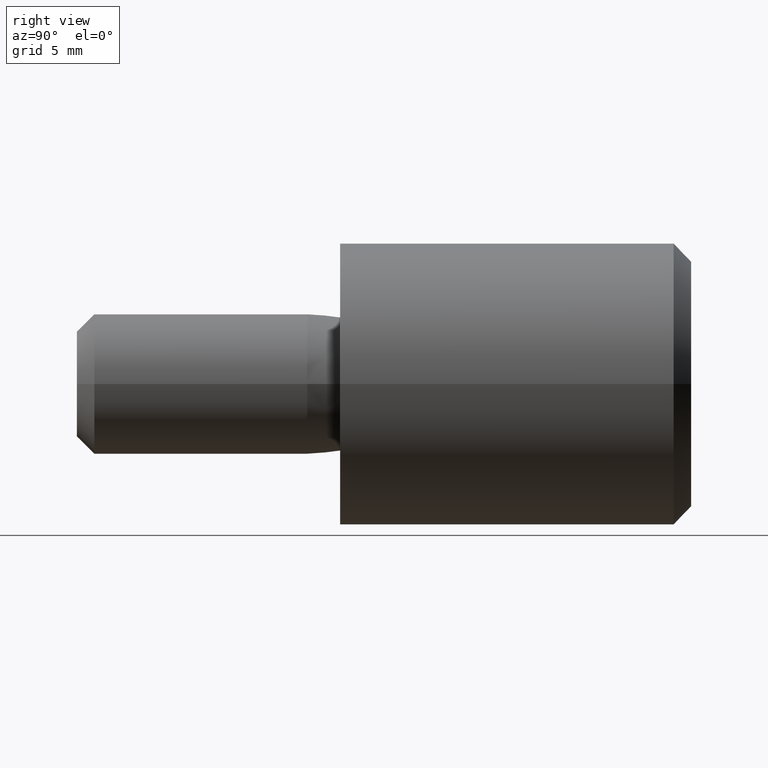
[diagram: clean part render]
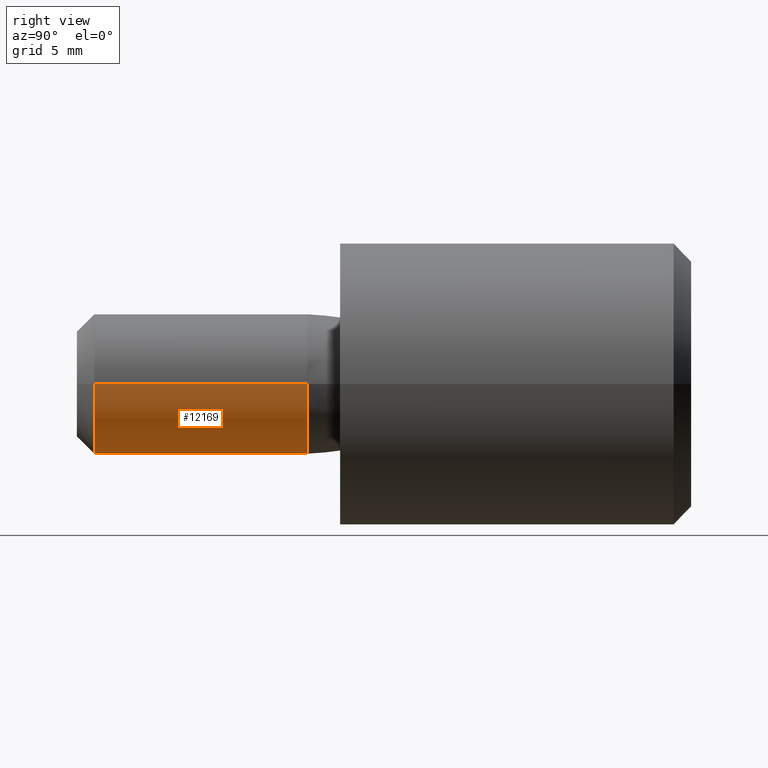
[diagram: same view with one face highlighted and labeled with its STEP entity id]
A machine part, right view. The second image highlights one B-rep face of the part: STEP entity #12169.
In plain terms, the highlighted cylindrical surface (partial cylindrical patch) has radius 4 mm, axis along (-0, -1, -0).
Its self-contained STEP definition (entity closure, byte-faithful):
#873 = AXIS2_PLACEMENT_3D ( 'NONE', #5318, #4434, #3327 ) ;
#1609 = VECTOR ( 'NONE', #2340, 1000.000000000000000 ) ;
#2340 = DIRECTION ( 'NONE',  ( -4.956352788505162800E-017, -1.000000000000000000, -0.0000000000000000000 ) ) ;
#2374 = DIRECTION ( 'NONE',  ( 1.000000000000000000, -5.421010862427525900E-017, 0.0000000000000000000 ) ) ;
#2699 = CARTESIAN_POINT ( 'NONE',  ( 4.956352788505168300E-017, -13.99999999999999800, 0.0000000000000000000 ) ) ;
#3042 = CARTESIAN_POINT ( 'NONE',  ( -3.999999999999996400, -1.870613216123589300, 4.898587196589410900E-016 ) ) ;
#3209 = LINE ( 'NONE', #7346, #1609 ) ;
#3327 = DIRECTION ( 'NONE',  ( 1.000000000000000000, 0.0000000000000000000, 0.0000000000000000000 ) ) ;
#3579 = CYLINDRICAL_SURFACE ( 'NONE', #873, 4.000000000000000000 ) ;
#3607 = DIRECTION ( 'NONE',  ( -4.956352788505162800E-017, -1.000000000000000000, -0.0000000000000000000 ) ) ;
#3707 = DIRECTION ( 'NONE',  ( 1.000000000000000000, 0.0000000000000000000, 0.0000000000000000000 ) ) ;
#4061 = EDGE_CURVE ( 'NONE', #10441, #4997, #12994, .T. ) ;
#4092 = FACE_OUTER_BOUND ( 'NONE', #4297, .T. ) ;
#4297 = EDGE_LOOP ( 'NONE', ( #6588, #6429, #9669, #6378 ) ) ;
#4397 = VERTEX_POINT ( 'NONE', #10296 ) ;
#4434 = DIRECTION ( 'NONE',  ( -4.956352788505162800E-017, -1.000000000000000000, -0.0000000000000000000 ) ) ;
#4997 = VERTEX_POINT ( 'NONE', #11235 ) ;
#5318 = CARTESIAN_POINT ( 'NONE',  ( 0.0000000000000000000, -15.00000000000000000, 0.0000000000000000000 ) ) ;
#5610 = CARTESIAN_POINT ( 'NONE',  ( -4.000000000000000000, -15.00000000000000000, 4.898587196589412800E-016 ) ) ;
#6156 = VERTEX_POINT ( 'NONE', #7537 ) ;
#6378 = ORIENTED_EDGE ( 'NONE', *, *, #9072, .F. ) ;
#6422 = DIRECTION ( 'NONE',  ( -4.956352788505162800E-017, -1.000000000000000000, -0.0000000000000000000 ) ) ;
#6429 = ORIENTED_EDGE ( 'NONE', *, *, #4061, .T. ) ;
#6516 = CIRCLE ( 'NONE', #8620, 4.000000000000001800 ) ;
#6588 = ORIENTED_EDGE ( 'NONE', *, *, #11272, .F. ) ;
#6909 = AXIS2_PLACEMENT_3D ( 'NONE', #7502, #6422, #2374 ) ;
#7346 = CARTESIAN_POINT ( 'NONE',  ( 4.000000000000000000, -15.00000000000000000, 0.0000000000000000000 ) ) ;
#7502 = CARTESIAN_POINT ( 'NONE',  ( 6.507387279762867300E-016, -1.870613216123589600, 0.0000000000000000000 ) ) ;
#7537 = CARTESIAN_POINT ( 'NONE',  ( 4.000000000000001800, -13.99999999999999800, 4.898587196589414800E-016 ) ) ;
#7655 = EDGE_CURVE ( 'NONE', #4997, #6156, #3209, .T. ) ;
#8620 = AXIS2_PLACEMENT_3D ( 'NONE', #2699, #9867, #3707 ) ;
#9072 = EDGE_CURVE ( 'NONE', #4397, #6156, #6516, .T. ) ;
#9087 = VECTOR ( 'NONE', #3607, 1000.000000000000000 ) ;
#9575 = LINE ( 'NONE', #5610, #9087 ) ;
#9669 = ORIENTED_EDGE ( 'NONE', *, *, #7655, .T. ) ;
#9867 = DIRECTION ( 'NONE',  ( -4.956352788505162800E-017, -1.000000000000000000, -0.0000000000000000000 ) ) ;
#10296 = CARTESIAN_POINT ( 'NONE',  ( -4.000000000000001800, -13.99999999999999800, 0.0000000000000000000 ) ) ;
#10441 = VERTEX_POINT ( 'NONE', #3042 ) ;
#11235 = CARTESIAN_POINT ( 'NONE',  ( 3.999999999999998200, -1.870613216123589800, 0.0000000000000000000 ) ) ;
#11272 = EDGE_CURVE ( 'NONE', #10441, #4397, #9575, .T. ) ;
#12169 = ADVANCED_FACE ( 'NONE', ( #4092 ), #3579, .T. ) ;
#12994 = CIRCLE ( 'NONE', #6909, 3.999999999999997300 ) ;